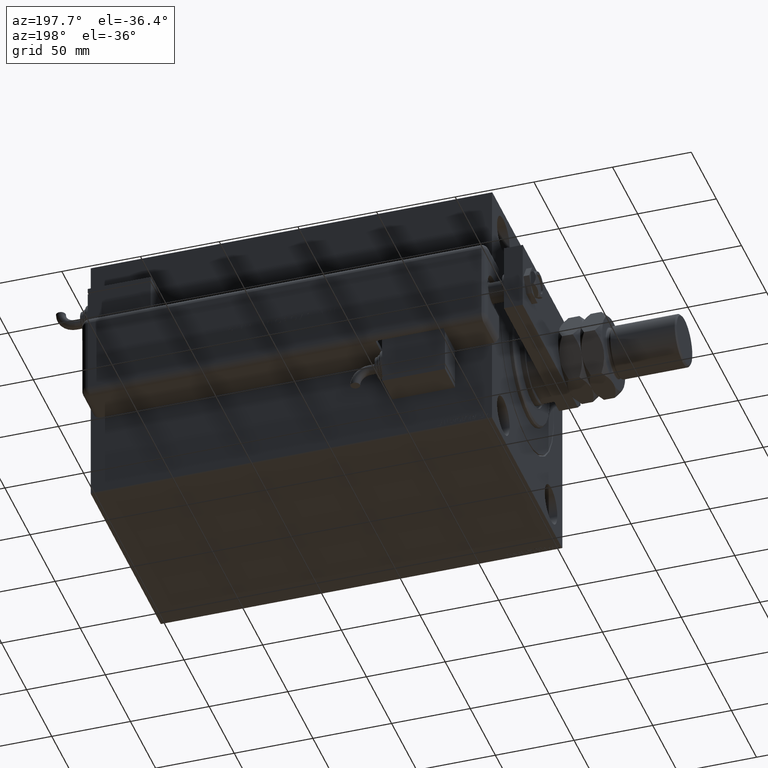
[diagram: clean part render]
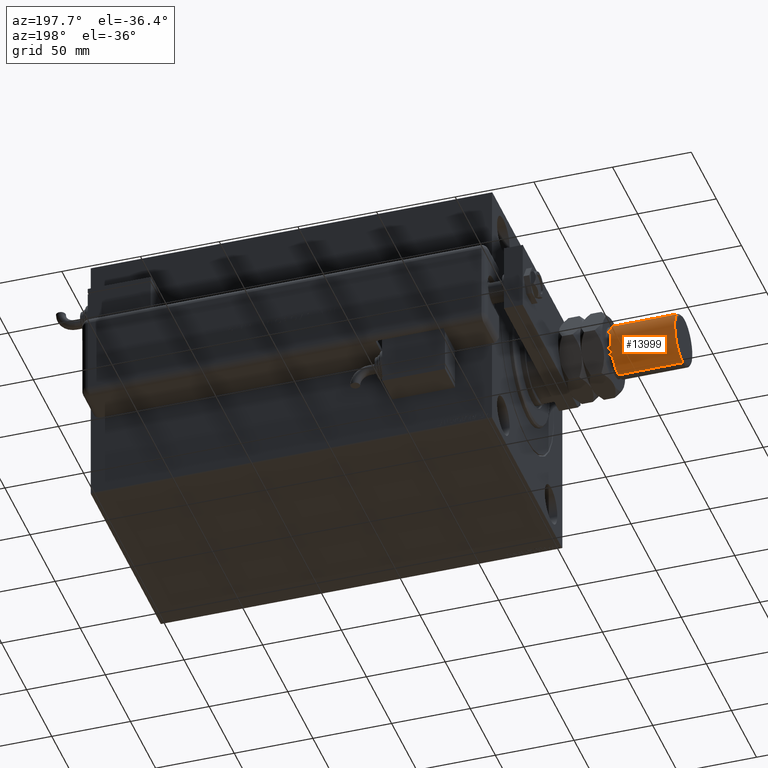
[diagram: same view with one face highlighted and labeled with its STEP entity id]
A machine part, auxiliary view. The second image highlights one B-rep face of the part: STEP entity #13999.
In plain terms, the highlighted cylindrical surface (edge-blend (fillet) strip) has radius 16.5 mm, axis along (1, -0, -0).
Its self-contained STEP definition (entity closure, byte-faithful):
#581 = LINE ( 'NONE', #19559, #15382 ) ;
#1278 = CARTESIAN_POINT ( 'NONE',  ( 16.50000000000000000, 2.020667218593133100E-15, 73.00000000000000000 ) ) ;
#2649 = CIRCLE ( 'NONE', #30460, 16.50000000000000000 ) ;
#3250 = ORIENTED_EDGE ( 'NONE', *, *, #34295, .F. ) ;
#3724 = AXIS2_PLACEMENT_3D ( 'NONE', #30290, #35273, #49290 ) ;
#4564 = ORIENTED_EDGE ( 'NONE', *, *, #59837, .T. ) ;
#7931 = CARTESIAN_POINT ( 'NONE',  ( -16.50000000000000000, 0.000000000000000000, 72.00000000000000000 ) ) ;
#8511 = CIRCLE ( 'NONE', #59202, 16.50000000000000000 ) ;
#9426 = EDGE_LOOP ( 'NONE', ( #37818, #34643, #4564, #3250 ) ) ;
#10295 = LINE ( 'NONE', #1278, #27852 ) ;
#10728 = CARTESIAN_POINT ( 'NONE',  ( 0.000000000000000000, 0.000000000000000000, 72.00000000000000000 ) ) ;
#12986 = VERTEX_POINT ( 'NONE', #50268 ) ;
#13999 = ADVANCED_FACE ( 'NONE', ( #58631 ), #15996, .T. ) ;
#15382 = VECTOR ( 'NONE', #48180, 1000.000000000000000 ) ;
#15996 = CYLINDRICAL_SURFACE ( 'NONE', #3724, 16.50000000000000000 ) ;
#19559 = CARTESIAN_POINT ( 'NONE',  ( -16.50000000000000000, 0.000000000000000000, 73.00000000000000000 ) ) ;
#19628 = EDGE_CURVE ( 'NONE', #50330, #46443, #10295, .T. ) ;
#24429 = DIRECTION ( 'NONE',  ( 0.000000000000000000, 0.000000000000000000, -1.000000000000000000 ) ) ;
#26084 = DIRECTION ( 'NONE',  ( -0.000000000000000000, -0.000000000000000000, 1.000000000000000000 ) ) ;
#27852 = VECTOR ( 'NONE', #43291, 1000.000000000000000 ) ;
#29142 = VERTEX_POINT ( 'NONE', #7931 ) ;
#30290 = CARTESIAN_POINT ( 'NONE',  ( 0.000000000000000000, 0.000000000000000000, 73.00000000000000000 ) ) ;
#30460 = AXIS2_PLACEMENT_3D ( 'NONE', #40095, #26084, #34835 ) ;
#33766 = DIRECTION ( 'NONE',  ( 1.000000000000000000, 0.000000000000000000, 0.000000000000000000 ) ) ;
#34295 = EDGE_CURVE ( 'NONE', #29142, #12986, #581, .T. ) ;
#34643 = ORIENTED_EDGE ( 'NONE', *, *, #19628, .T. ) ;
#34835 = DIRECTION ( 'NONE',  ( 1.000000000000000000, 0.000000000000000000, 0.000000000000000000 ) ) ;
#35273 = DIRECTION ( 'NONE',  ( -0.000000000000000000, -0.000000000000000000, -1.000000000000000000 ) ) ;
#37818 = ORIENTED_EDGE ( 'NONE', *, *, #41242, .T. ) ;
#38010 = CARTESIAN_POINT ( 'NONE',  ( 16.50000000000000000, 2.020667218593133100E-15, 30.99999999999998579 ) ) ;
#40095 = CARTESIAN_POINT ( 'NONE',  ( 0.000000000000000000, 0.000000000000000000, 30.99999999999998579 ) ) ;
#41242 = EDGE_CURVE ( 'NONE', #29142, #50330, #8511, .T. ) ;
#43291 = DIRECTION ( 'NONE',  ( -0.000000000000000000, -0.000000000000000000, -1.000000000000000000 ) ) ;
#43678 = CARTESIAN_POINT ( 'NONE',  ( 16.50000000000000000, 2.020667218593133100E-15, 72.00000000000000000 ) ) ;
#46443 = VERTEX_POINT ( 'NONE', #38010 ) ;
#48180 = DIRECTION ( 'NONE',  ( -0.000000000000000000, -0.000000000000000000, -1.000000000000000000 ) ) ;
#49290 = DIRECTION ( 'NONE',  ( -1.000000000000000000, 0.000000000000000000, 0.000000000000000000 ) ) ;
#50268 = CARTESIAN_POINT ( 'NONE',  ( -16.50000000000000000, 0.000000000000000000, 30.99999999999998579 ) ) ;
#50330 = VERTEX_POINT ( 'NONE', #43678 ) ;
#58631 = FACE_OUTER_BOUND ( 'NONE', #9426, .T. ) ;
#59202 = AXIS2_PLACEMENT_3D ( 'NONE', #10728, #24429, #33766 ) ;
#59837 = EDGE_CURVE ( 'NONE', #46443, #12986, #2649, .T. ) ;